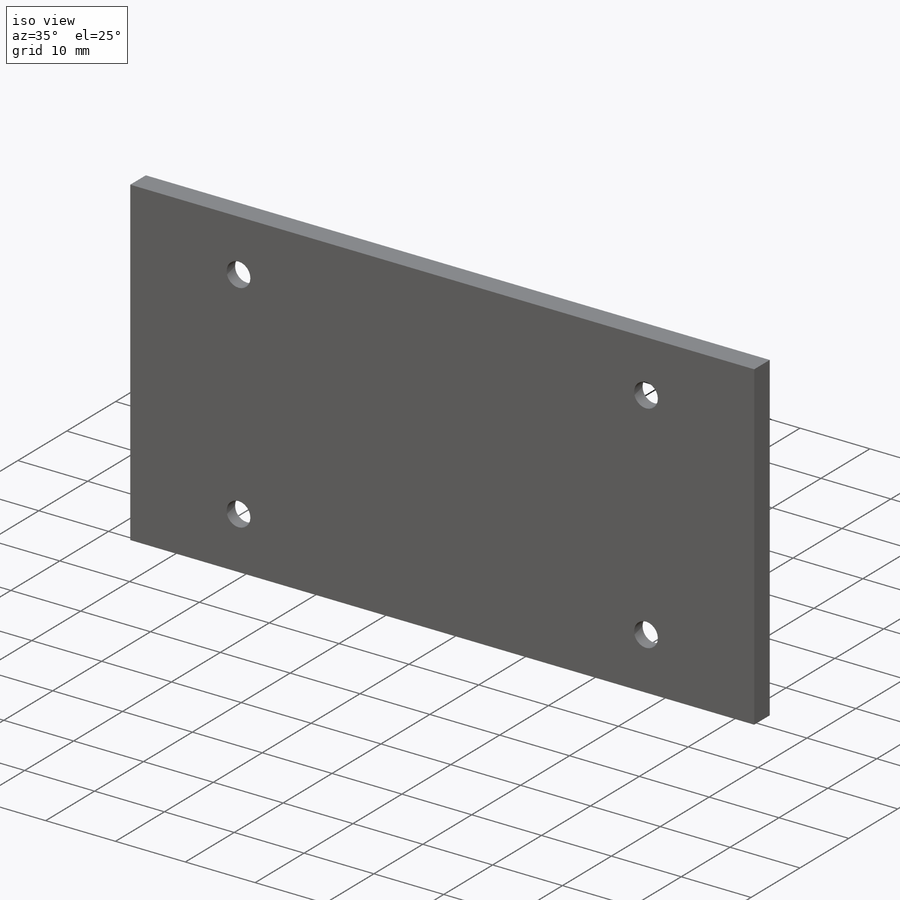
[diagram: iso view]
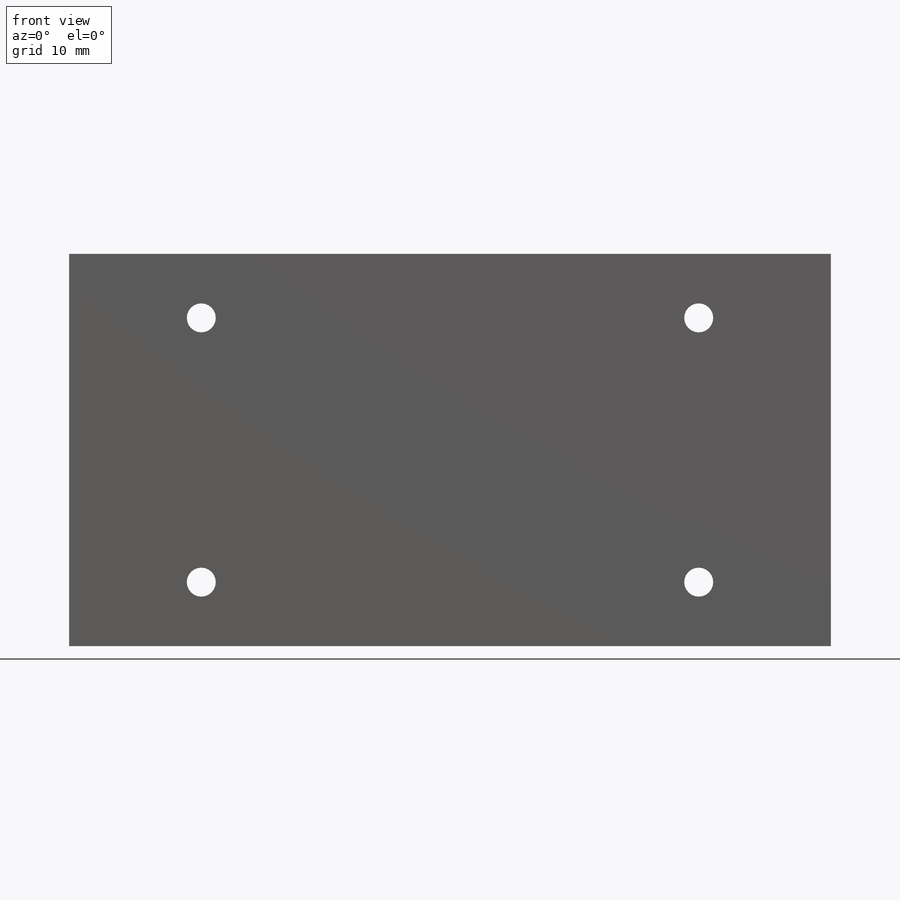
[diagram: front view]
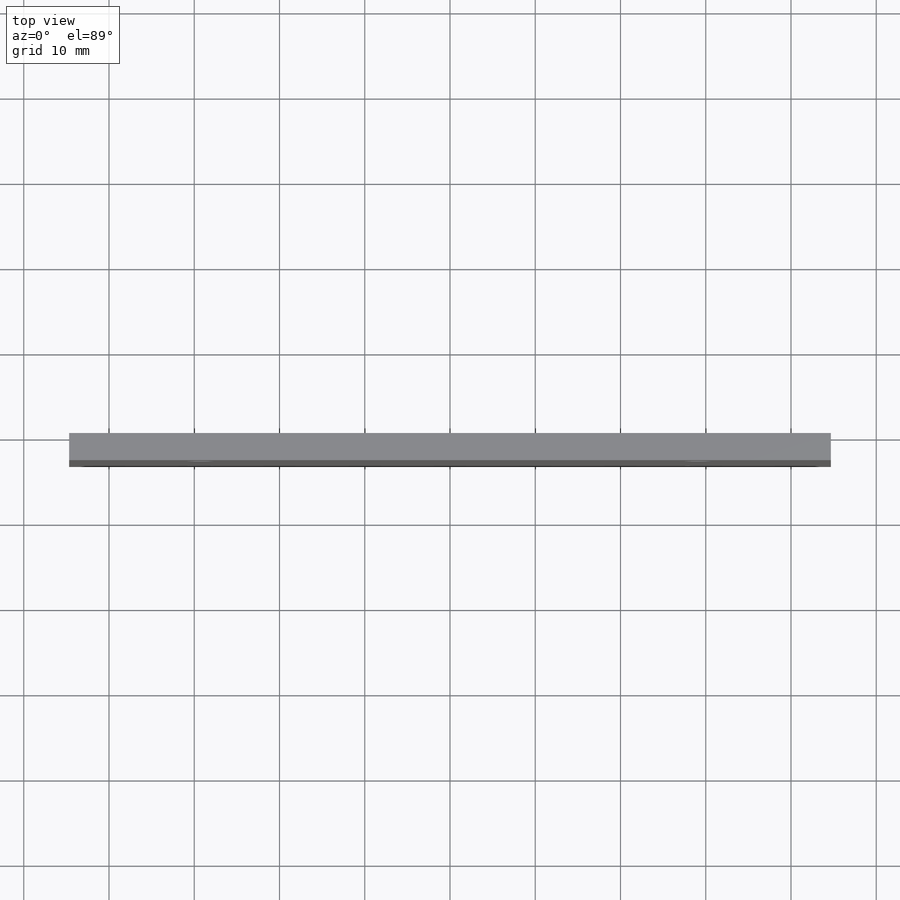
[diagram: top view]
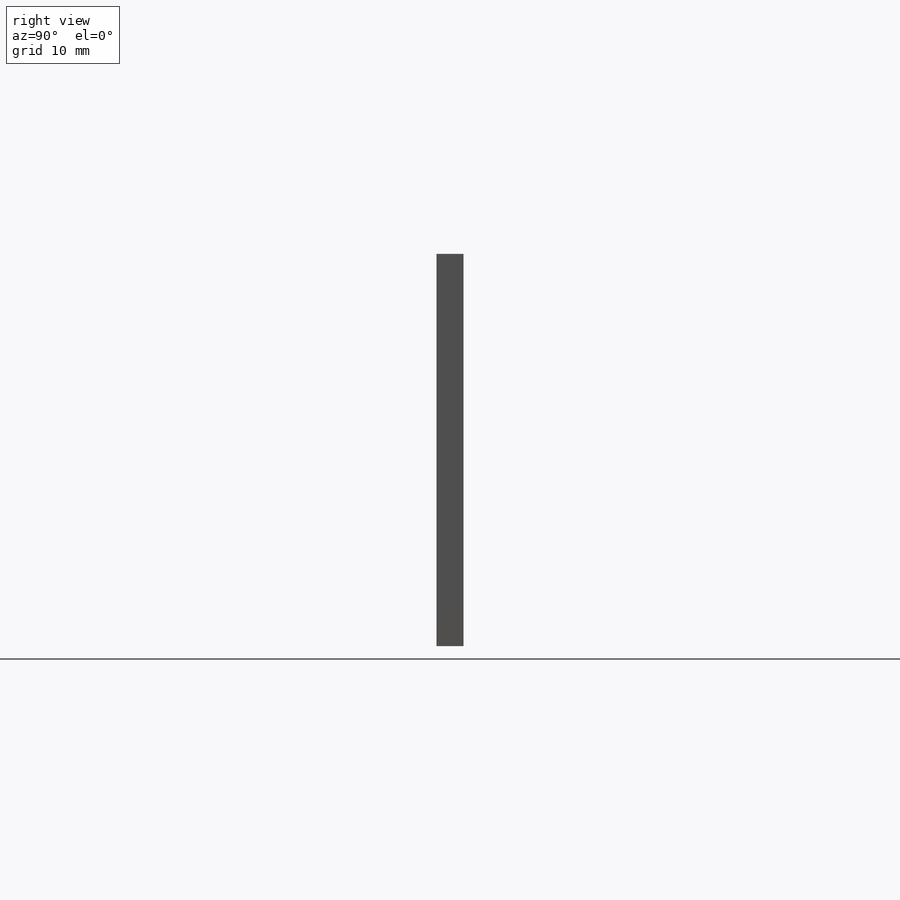
[diagram: right view]
SOLIDWORKS PART (.sldprt)
format: sldprt  version: not decoded by parser v0  size: 184,320 bytes
history: native  units: mm
features: sketch x4, material x1, extrude x1, hole x1 (+13 scaffold rows collapsed)
feature tree (20):
  scaffold x13  (default folders/planes/origin — collapsed)
  material  "Material <not specified>"
  sketch  "Profile Sketch"  dims[D1=~89.349072mm D2=46.0mm D3=~81.012206mm D4=15.0mm]
  extrude  "Profile Extrude"  Depth=3.175mm
  sketch  "Column Mounting Hole Sketch"  dims[c1.D1=3.15mm c1.D4=3.15mm c1.D6=3.15mm c1.D2=10.5mm c1.D3=10.5mm c1.D5=7.5mm c1.D7=7.5mm c1.D8=~15.49908mm c1.D9=58.35mm c2.D2=7.5mm c2.D3=7.5mm c2.D1=~15.49908mm c3.D2=7.5mm c3.D3=~29.175456mm]
  hole  "CSK for M3 Flat Head Machine Screw1"  Diameter=3.4mm Depth=3.175mm
  sketch  "3DSketch1"
  sketch  "Sketch1"  dims[hole-wizard template sketch: 59 standard entries collapsed; hole parameters above]
decode coverage: 5 of 6 modeling features carry decoded parameters
note: ~ marks probable driven/reference dimensions
note: suppression state not decoded; provenance and decode notes live in map.json
